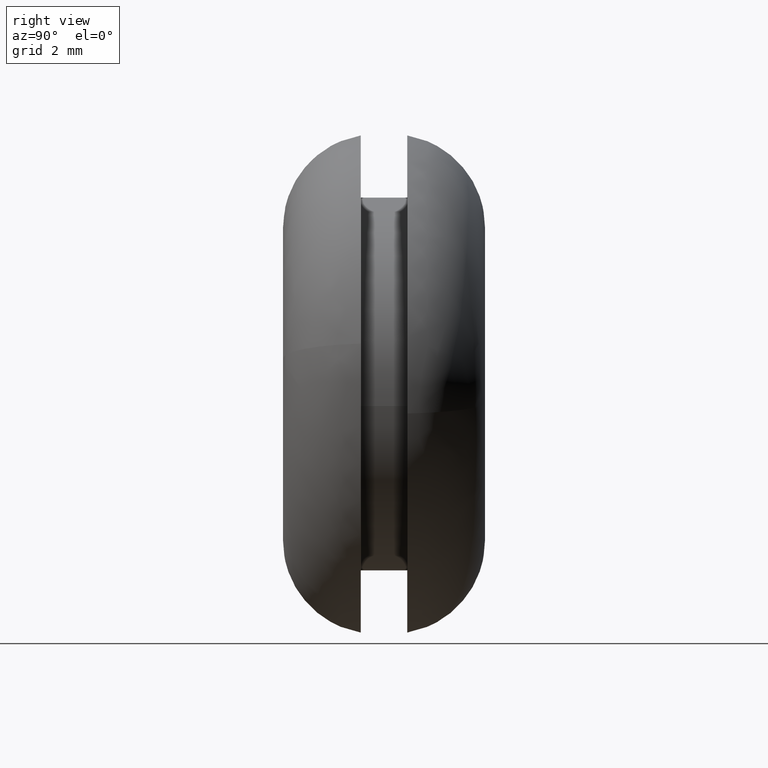
[diagram: clean part render]
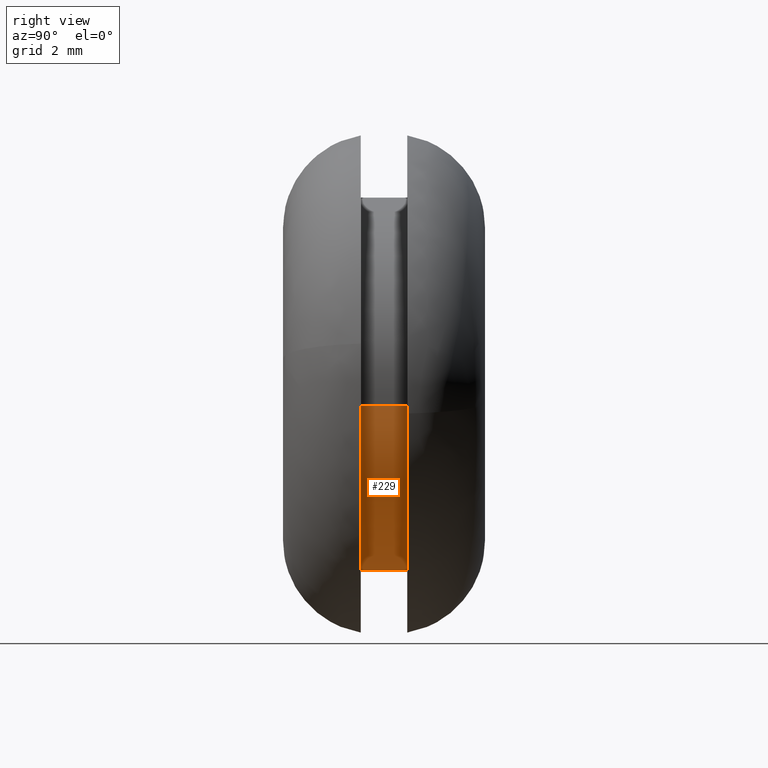
[diagram: same view with one face highlighted and labeled with its STEP entity id]
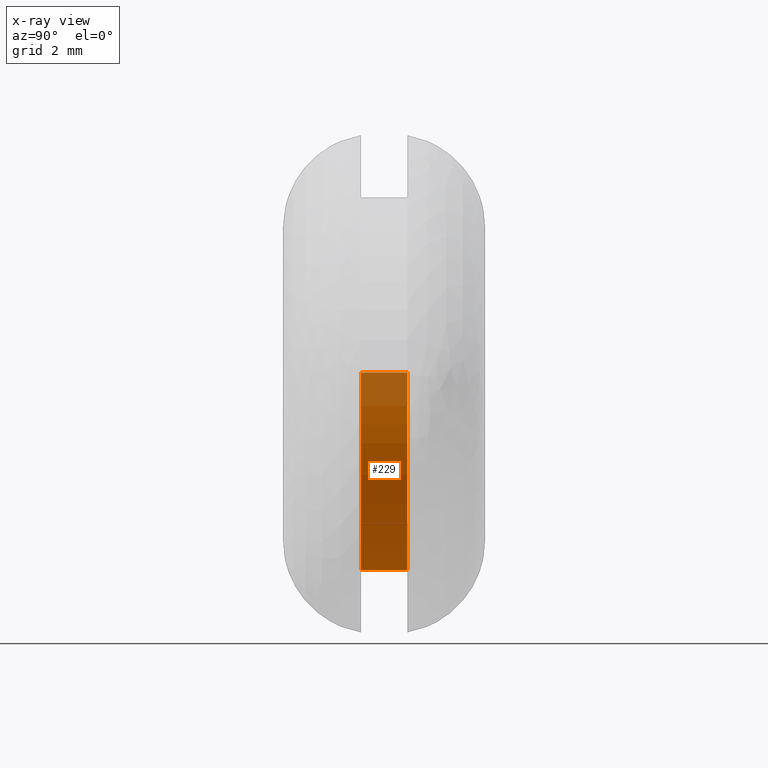
[diagram: x-ray of the same camera — body ghosted, the highlighted face saturated]
A machine part, right view. The second image highlights one B-rep face of the part: STEP entity #229.
The next image is the same camera in x-ray: the body ghosted, the highlighted face saturated — about 17% of this face is hidden behind the body in this view.
In plain terms, the highlighted face is a freeform B-spline surface patch.
Its self-contained STEP definition (entity closure, byte-faithful):
#66=CARTESIAN_POINT('',(5.958057818303820,2.499999999999991,-0.708199854361355));
#67=VERTEX_POINT('',#66);
#85=CARTESIAN_POINT('',(5.958057810158673,4.0,-0.708199922886695));
#86=VERTEX_POINT('',#85);
#87=CARTESIAN_POINT('',(5.958057810158673,4.0,-0.708199922886695));
#88=CARTESIAN_POINT('',(5.958057818303820,2.499999999999991,-0.708199854361355));
#89=QUASI_UNIFORM_CURVE('',1,(#87,#88),.UNSPECIFIED.,.F.,.U.);
#90=EDGE_CURVE('',#86,#67,#89,.T.);
#109=CARTESIAN_POINT('',(-5.988809104776754,4.0,0.366286099267417));
#110=VERTEX_POINT('',#109);
#124=CARTESIAN_POINT('',(-5.988809108703983,2.499999999999951,0.366286035055973));
#125=VERTEX_POINT('',#124);
#126=CARTESIAN_POINT('',(-5.988809104776754,4.0,0.366286099267417));
#127=CARTESIAN_POINT('',(-5.988809108703983,2.499999999999951,0.366286035055973));
#128=QUASI_UNIFORM_CURVE('',1,(#126,#127),.UNSPECIFIED.,.F.,.U.);
#129=EDGE_CURVE('',#110,#125,#128,.T.);
#147=CARTESIAN_POINT('',(-5.988808790531200,4.037500000000000,0.366291237209142));
#148=CARTESIAN_POINT('',(-6.355100027740342,4.037500000000001,-5.622517553322059));
#149=CARTESIAN_POINT('',(-0.366291237209142,4.037500000000000,-5.988808790531200));
#150=CARTESIAN_POINT('',(5.289260945037006,4.037500000000001,-6.334717180395166));
#151=CARTESIAN_POINT('',(5.958057158181998,4.037500000000000,-0.708205407940551));
#152=CARTESIAN_POINT('',(-5.988808790531200,2.461562499999999,0.366291237209142));
#153=CARTESIAN_POINT('',(-6.355100027740342,2.461562500000000,-5.622517553322059));
#154=CARTESIAN_POINT('',(-0.366291237209142,2.461562499999999,-5.988808790531200));
#155=CARTESIAN_POINT('',(5.289260945037006,2.461562499999999,-6.334717180395166));
#156=CARTESIAN_POINT('',(5.958057158181998,2.461562500000000,-0.708205407940551));
#164=(BOUNDED_SURFACE()B_SPLINE_SURFACE(2,1,((#147,#152),(#148,#153),(#149,#154),(#150,#155),(#151,#156)),.UNSPECIFIED.,.F.,.F.,.U.)B_SPLINE_SURFACE_WITH_KNOTS((3,2,3),(2,2),(0.0,9.941125496954278,19.484605974030391),(0.0,1.0),.UNSPECIFIED.)GEOMETRIC_REPRESENTATION_ITEM()RATIONAL_B_SPLINE_SURFACE(((1.0,1.0),(0.707106781186548,0.707106781186548),(1.0,1.0),(0.718822509939086,0.718822509939086),(0.977505800795127,0.977505800795127)))REPRESENTATION_ITEM('')SURFACE());
#165=CARTESIAN_POINT('',(0.0,2.500000000000000,-6.0));
#166=VERTEX_POINT('',#165);
#167=CARTESIAN_POINT('',(0.0,2.500000000000000,-6.0));
#168=CARTESIAN_POINT('',(5.329052157948890,2.500000000000000,-6.0));
#169=CARTESIAN_POINT('',(5.958057818303820,2.499999999999990,-0.708199854361355));
#177=(BOUNDED_CURVE()B_SPLINE_CURVE(2,(#167,#168,#169),.UNSPECIFIED.,.F.,.U.)B_SPLINE_CURVE_WITH_KNOTS((3,3),(0.0,0.229562631045684),.UNSPECIFIED.)CURVE()GEOMETRIC_REPRESENTATION_ITEM()RATIONAL_B_SPLINE_CURVE((1.0,0.731050648294978,0.956027062953443))REPRESENTATION_ITEM(''));
#178=EDGE_CURVE('',#166,#67,#177,.T.);
#179=ORIENTED_EDGE('',*,*,#178,.F.);
#180=CARTESIAN_POINT('',(-5.988809108703984,2.499999999999951,0.366286035055973));
#181=CARTESIAN_POINT('',(-6.0,2.500000000000000,0.183313971421956));
#182=CARTESIAN_POINT('',(-6.0,2.500000000000000,-3.061516E-016));
#183=CARTESIAN_POINT('',(-6.0,2.500000000000000,-6.0));
#184=CARTESIAN_POINT('',(0.0,2.500000000000000,-6.0));
#192=(BOUNDED_CURVE()B_SPLINE_CURVE(2,(#180,#181,#182,#183,#184),.UNSPECIFIED.,.F.,.U.)B_SPLINE_CURVE_WITH_KNOTS((3,2,3),(0.739333112124017,0.750000000000000,1.0),.UNSPECIFIED.)CURVE()GEOMETRIC_REPRESENTATION_ITEM()RATIONAL_B_SPLINE_CURVE((0.976072362899173,0.987502963501124,1.0,0.707106781186548,1.0))REPRESENTATION_ITEM(''));
#193=EDGE_CURVE('',#125,#166,#192,.T.);
#194=ORIENTED_EDGE('',*,*,#193,.F.);
#195=ORIENTED_EDGE('',*,*,#129,.F.);
#196=CARTESIAN_POINT('',(0.0,4.0,-6.0));
#197=VERTEX_POINT('',#196);
#198=CARTESIAN_POINT('',(-5.988809104776754,4.0,0.366286099267417));
#199=CARTESIAN_POINT('',(-6.0,4.000000000000001,0.183314003617696));
#200=CARTESIAN_POINT('',(-6.0,4.0,-3.061516E-016));
#201=CARTESIAN_POINT('',(-6.0,4.000000000000000,-6.0));
#202=CARTESIAN_POINT('',(0.0,4.0,-6.0));
#210=(BOUNDED_CURVE()B_SPLINE_CURVE(2,(#198,#199,#200,#201,#202),.UNSPECIFIED.,.F.,.U.)B_SPLINE_CURVE_WITH_KNOTS((3,2,3),(0.739333110273986,0.750000000000000,1.0),.UNSPECIFIED.)CURVE()GEOMETRIC_REPRESENTATION_ITEM()RATIONAL_B_SPLINE_CURVE((0.976072358934200,0.987502961333678,1.0,0.707106781186548,1.0))REPRESENTATION_ITEM(''));
#211=EDGE_CURVE('',#110,#197,#210,.T.);
#212=ORIENTED_EDGE('',*,*,#211,.T.);
#213=CARTESIAN_POINT('',(0.0,4.0,-6.0));
#214=CARTESIAN_POINT('',(5.329052096226471,4.0,-6.000000000000001));
#215=CARTESIAN_POINT('',(5.958057810158673,4.000000000000000,-0.708199922886695));
#223=(BOUNDED_CURVE()B_SPLINE_CURVE(2,(#213,#214,#215),.UNSPECIFIED.,.F.,.U.)B_SPLINE_CURVE_WITH_KNOTS((3,3),(0.0,0.229562629101929),.UNSPECIFIED.)CURVE()GEOMETRIC_REPRESENTATION_ITEM()RATIONAL_B_SPLINE_CURVE((1.0,0.731050650572230,0.956027059143597))REPRESENTATION_ITEM(''));
#224=EDGE_CURVE('',#197,#86,#223,.T.);
#225=ORIENTED_EDGE('',*,*,#224,.T.);
#226=ORIENTED_EDGE('',*,*,#90,.T.);
#227=EDGE_LOOP('',(#179,#194,#195,#212,#225,#226));
#228=FACE_OUTER_BOUND('',#227,.T.);
#229=ADVANCED_FACE('',(#228),#164,.T.);